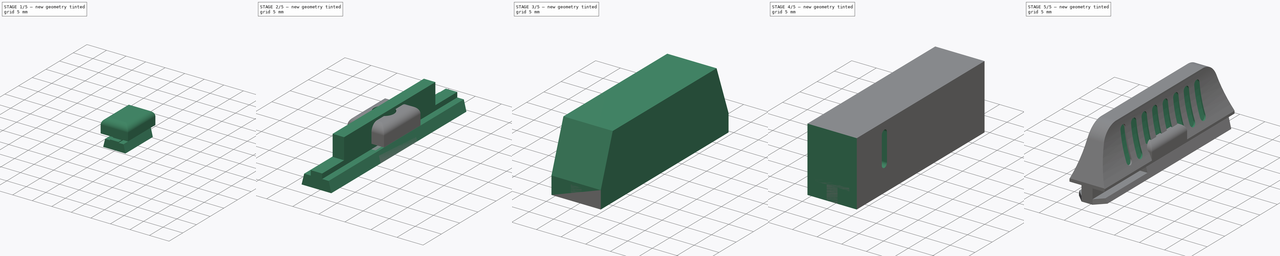
[diagram: build sequence overview — one tinted view per stage of 5, left to right]
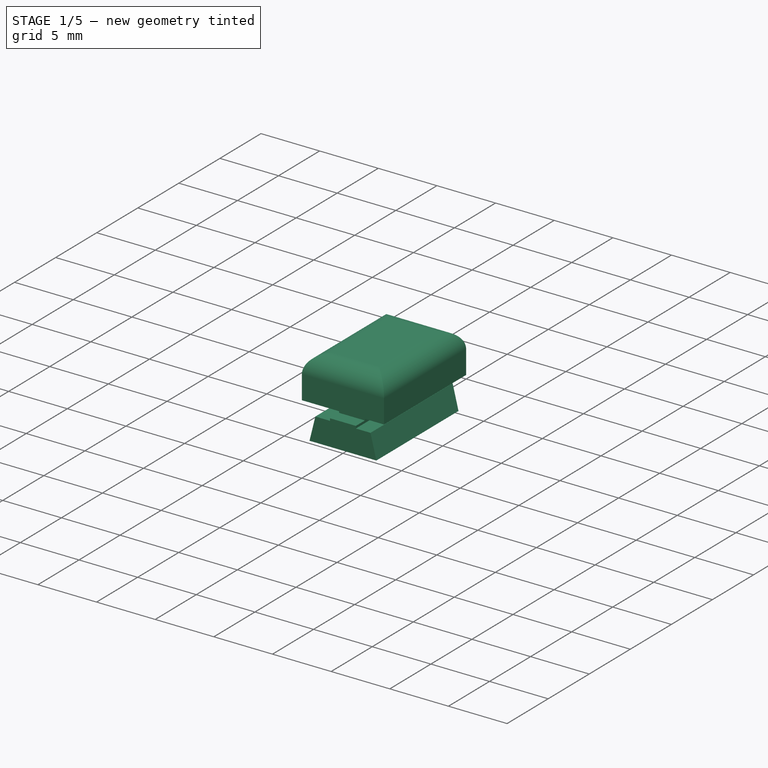
[diagram: stage 1 of 5 — iso view after this stage's code; geometry added in this stage tinted green]
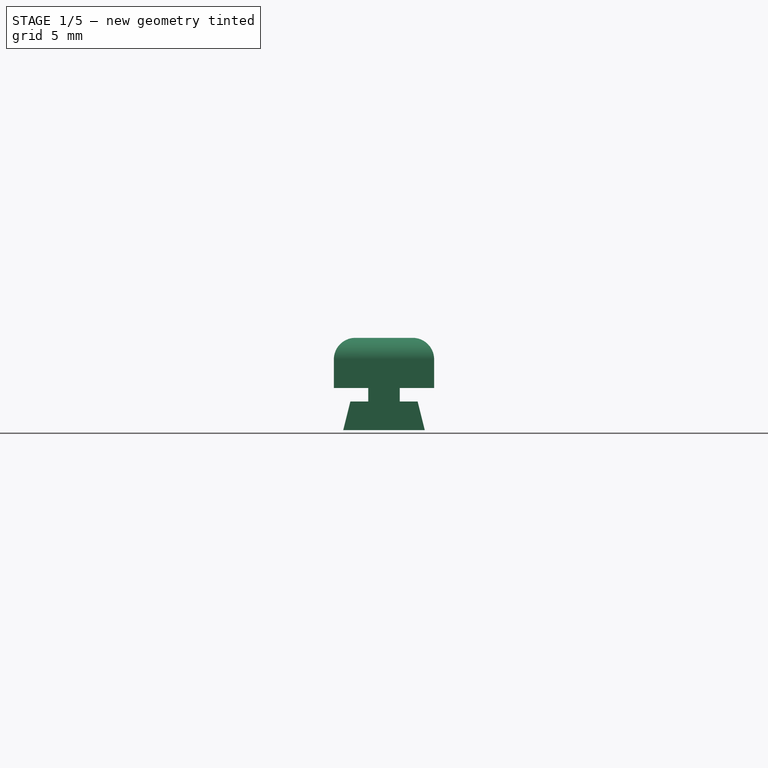
[diagram: stage 1 of 5 — front view after this stage's code; geometry added in this stage tinted green]
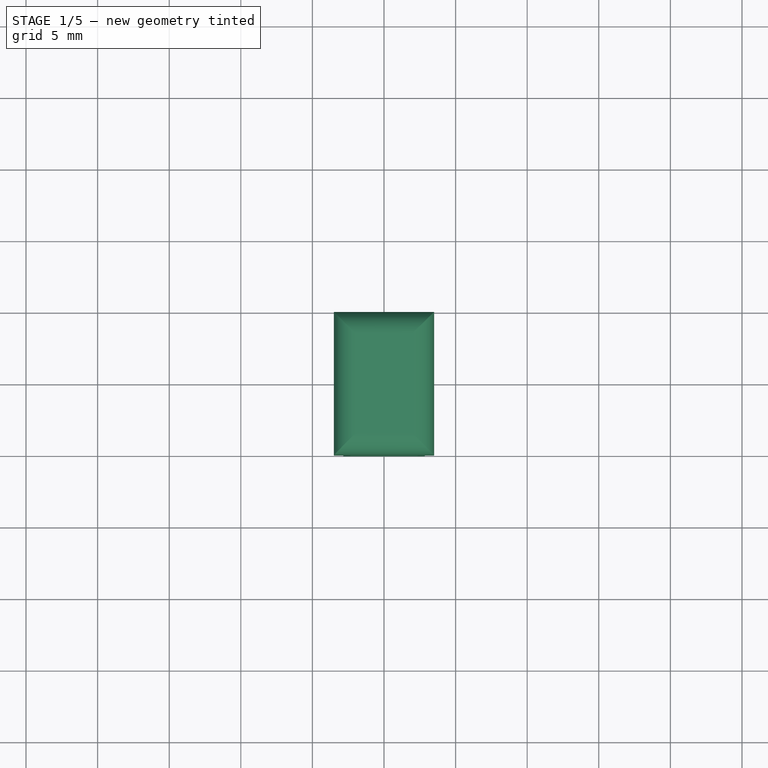
[diagram: stage 1 of 5 — top view after this stage's code; geometry added in this stage tinted green]
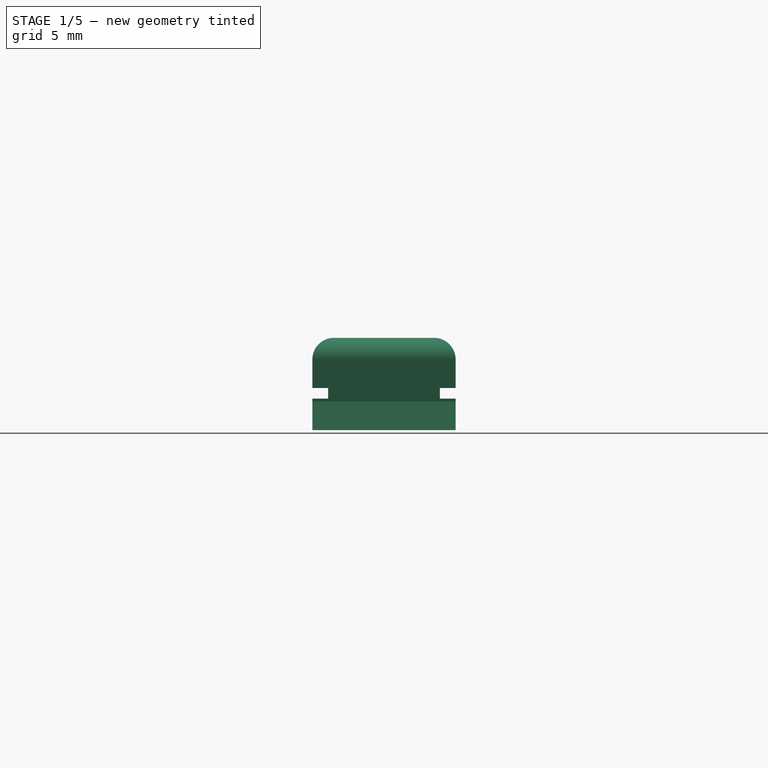
[diagram: stage 1 of 5 — right view after this stage's code; geometry added in this stage tinted green]
FCSTD DOCUMENT  (FreeCAD 0.16R6348 (Git))
Label: ShowerDoorLock
License: CreativeCommons Attribution-ShareAlike
LicenseURL: http://creativecommons.org/licenses/by-sa/4.0/
objects: Sketcher::SketchObject×16, PartDesign::Pocket×11, App::DocumentObjectGroup×6, PartDesign::Pad×5, Part::Box×2, Part::Cut×2, PartDesign::Fillet×2, Part::MultiCommon×1, PartDesign::LinearPattern×1
note: 56 computed .brp shape members not serialized (recipe doc carries the construction recipe); baked Part::Feature solids carry a one-line shape summary decoded from their .brp

FEATURE [Sketcher::SketchObject] Sketch004  label="01_EndstopBase_Sketch"
  Placement = pos=(0,0,0) rot=(1,0,0;1.5708rad)
  sketch-geometry (4):
    g0: LineSegment StartX=3.5 StartY=2.95 StartZ=0 EndX=-3.5 EndY=2.95 EndZ=0
    g1: LineSegment StartX=-3.5 StartY=2.95 StartZ=0 EndX=-3.5 EndY=6.45 EndZ=0
    g2: LineSegment StartX=3.5 StartY=2.95 StartZ=0 EndX=3.5 EndY=6.45 EndZ=0
    g3: LineSegment StartX=-3.5 StartY=6.45 StartZ=0 EndX=3.5 EndY=6.45 EndZ=0
  constraints (12):
    c: Horizontal(g0)
    c: Symmetric(g0,g2,g-2)
    c: Distance(g0,g2) = 7
    c: Coincident(g1,g0)
    c: Vertical(g2)
    c: Vertical(g1)
    c: Symmetric(g1,g2,g-2)
    c: DistanceY(g2) = 3.5
    c: Coincident(g3,g1)
    c: Coincident(g3,g2)
    c: Coincident(g0,g2)
    c: DistanceY(g-1,g0) = 2.95
FEATURE [PartDesign::Pad] Pad002  label="01_EndstopBase_Pad"
  Length = 10
  Length2 = 100
  Midplane = true
  Placement = pos=(0,0,0) rot=(1,0,0;1.5708rad)
  Sketch = -> Sketch004
  Type = 0
FEATURE [App::DocumentObjectGroup] Group003  label="Slide"
  Group = -> [Pad003,Pocket004,Pocket008,Pocket009]
FEATURE [App::DocumentObjectGroup] Group  label="Bolt"
  Group = -> [Group002,Group003]
FEATURE [Sketcher::SketchObject] Sketch014  label="01_EndstopBase_Sketch001"
  Placement = pos=(0,0,0) rot=(1,0,0;1.5708rad)
  sketch-geometry (8):
    g0: LineSegment StartX=-2.85 StartY=0 StartZ=0 EndX=-2.35 EndY=2 EndZ=0
    g1: LineSegment StartX=-2.35 StartY=2 StartZ=0 EndX=-1.1 EndY=2 EndZ=0
    g2: LineSegment StartX=-1.1 StartY=2 StartZ=0 EndX=-1.1 EndY=3.2 EndZ=0
    g3: LineSegment StartX=2.85 StartY=0 StartZ=0 EndX=2.35 EndY=2 EndZ=0
    g4: LineSegment StartX=2.35 StartY=2 StartZ=0 EndX=1.1 EndY=2 EndZ=0
    g5: LineSegment StartX=1.1 StartY=2 StartZ=0 EndX=1.1 EndY=3.2 EndZ=0
    g6: LineSegment StartX=-2.85 StartY=0 StartZ=0 EndX=2.85 EndY=0 EndZ=0
    g7: LineSegment StartX=-1.1 StartY=3.2 StartZ=0 EndX=1.1 EndY=3.2 EndZ=0
  constraints (23):
    c: PointOnObject(g0,g-1)
    c: Coincident(g0,g1)
    c: Horizontal(g1)
    c: Coincident(g1,g2)
    c: PointOnObject(g3,g-1)
    c: Coincident(g3,g4)
    c: Horizontal(g4)
    c: Coincident(g4,g5)
    c: Symmetric(g0,g3,g-2)
    c: Horizontal(g6)
    c: Coincident(g6,g3)
    c: Coincident(g0,g6)
    c: Symmetric(g0,g3,g-2)
    c: Symmetric(g1,g4,g-2)
    c: Symmetric(g2,g5,g-2)
    c: DistanceX(g6) = 5.7
    c: Distance(g3,g0) = 4.7
    c: DistanceY(g3,g3) = -2
    c: DistanceY(g4,g5) = 1.2
    c: Vertical(g2)
    c: Distance(g2,g5) = 2.2
    c: Coincident(g7,g2)
    c: Coincident(g7,g5)
FEATURE [PartDesign::Fillet] Fillet001  label="02_RoundedTop_Fillet"
  Base = -> Pad002 [Edge5,Edge9,Edge8,Edge10]
  Placement = pos=(0,0,0) rot=(1,0,0;1.5708rad)
  Radius = 1.5
FEATURE [App::DocumentObjectGroup] Group004  label="Head"
  Group = -> [Pad002,Fillet001,Pocket002,Pocket003,Pocket010]
FEATURE [PartDesign::Pad] Pad004  label="01_EndstopBase_Pad001"
  Length = 10
  Length2 = 100
  Midplane = true
  Placement = pos=(0,0,0) rot=(1,0,0;1.5708rad)
  Sketch = -> Sketch014
  Type = 0
FEATURE [Sketcher::SketchObject] Sketch016  label="02_FootCutOuts_Sketch"
  ExternalGeometry = -> [Pad004]
  Placement = pos=(-1.1,0,0) rot=(0.707107,0,-0.707107;3.14159rad)
  Support = -> Pad004 [Face4]
  sketch-geometry (8):
    g0: LineSegment StartX=-3.2 StartY=5 StartZ=0 EndX=-2.2 EndY=5 EndZ=0
    g1: LineSegment StartX=-2.2 StartY=5 StartZ=0 EndX=-2.2 EndY=3.9 EndZ=0
    g2: LineSegment StartX=-2.2 StartY=3.9 StartZ=0 EndX=-3.2 EndY=3.9 EndZ=0
    g3: LineSegment StartX=-3.2 StartY=3.9 StartZ=0 EndX=-3.2 EndY=5 EndZ=0
    g4: LineSegment StartX=-3.2 StartY=-3.9 StartZ=0 EndX=-2.2 EndY=-3.9 EndZ=0
    g5: LineSegment StartX=-2.2 StartY=-3.9 StartZ=0 EndX=-2.2 EndY=-5 EndZ=0
    g6: LineSegment StartX=-2.2 StartY=-5 StartZ=0 EndX=-3.2 EndY=-5 EndZ=0
    g7: LineSegment StartX=-3.2 StartY=-5 StartZ=0 EndX=-3.2 EndY=-3.9 EndZ=0
  constraints (21):
    c: Coincident(g0,g1)
    c: Coincident(g1,g2)
    c: Coincident(g2,g3)
    c: Coincident(g3,g0)
    c: Horizontal(g0)
    c: Horizontal(g2)
    c: Vertical(g1)
    c: Vertical(g3)
    c: Coincident(g0,g-3)
    c: DistanceX(g0,g0) = 1
    c: DistanceY(g3) = 1.1
    c: Coincident(g4,g5)
    c: Coincident(g5,g6)
    c: Coincident(g6,g7)
    c: Coincident(g7,g4)
    c: Horizontal(g4)
    c: Horizontal(g6)
    c: Vertical(g5)
    c: Vertical(g7)
    c: Symmetric(g6,g0,g-1)
    c: Symmetric(g1,g4,g-1)
FEATURE [PartDesign::Pocket] Pocket011  label="02_FootCutOuts_Pocket"
  Length = 5
  Placement = pos=(0,0,0) rot=(1,0,0;1.5708rad)
  Sketch = -> Sketch016
  Type = 1
FEATURE [Sketcher::SketchObject] Sketch017  label="03_ScrewHoles_Sketch"
  Placement = pos=(0,0,3.2) rot=(0,0,1;3.14159rad)
  Support = -> Pocket011 [Face13]
  sketch-geometry (1):
    g0: Circle CenterX=0 CenterY=0 CenterZ=0 NormalX=0 NormalY=0 NormalZ=1 Radius=0.6
  constraints (2):
    c: Coincident(g0,g-1)
    c: Radius(g0) = 0.6
FEATURE [PartDesign::Pocket] Pocket012  label="03_ScrewHoles_Pocket"
  Length = 5
  Placement = pos=(0,0,0) rot=(1,0,0;1.5708rad)
  Sketch = -> Sketch017
  Type = 1
FEATURE [App::DocumentObjectGroup] Group005  label="Foot"
  Group = -> [Pad004,Pocket011,Pocket012]
FEATURE [App::DocumentObjectGroup] Group001  label="Endstop"
  Group = -> [Group004,Group005]
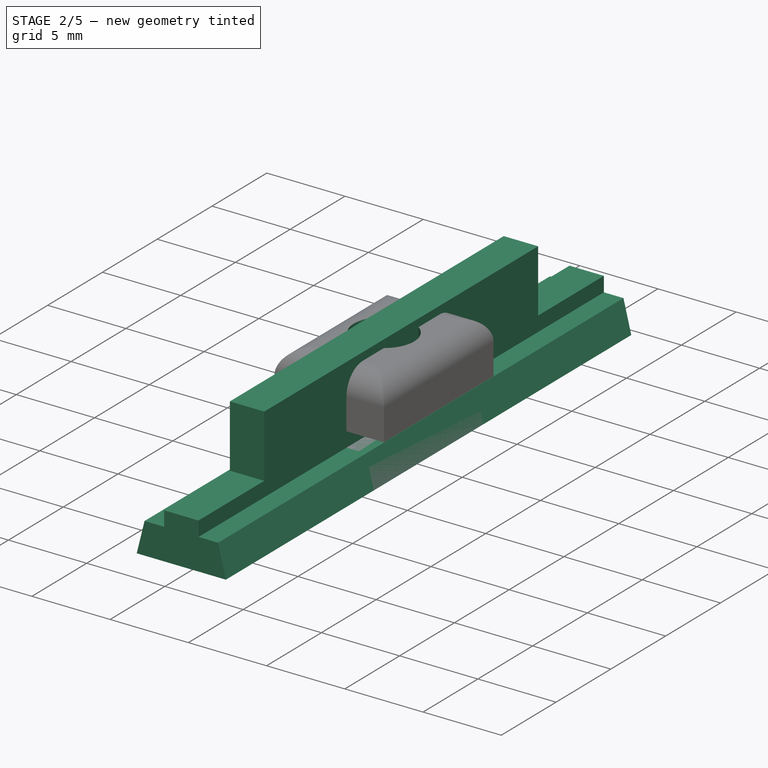
[diagram: stage 2 of 5 — iso view after this stage's code; geometry added in this stage tinted green]
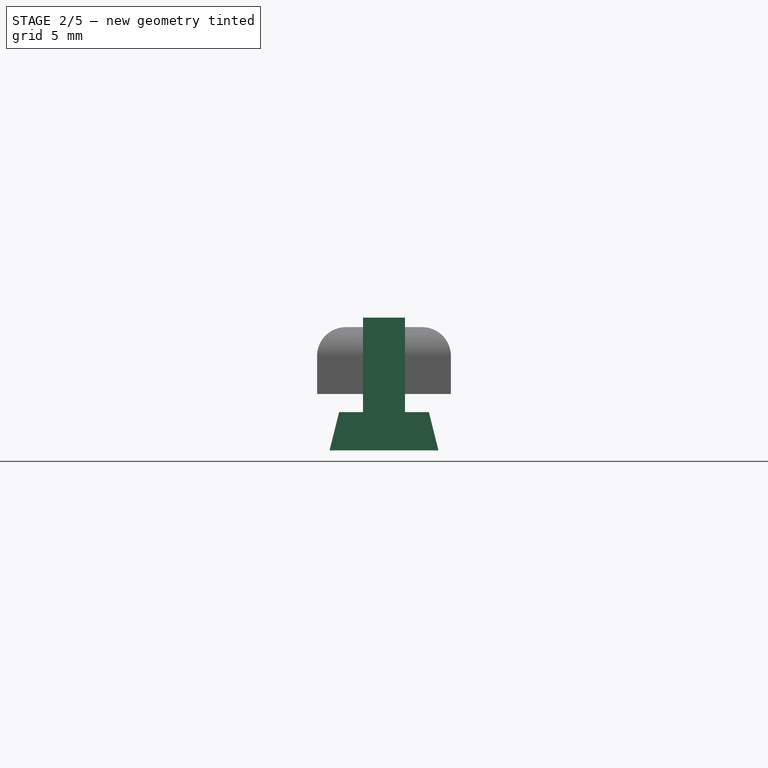
[diagram: stage 2 of 5 — front view after this stage's code; geometry added in this stage tinted green]
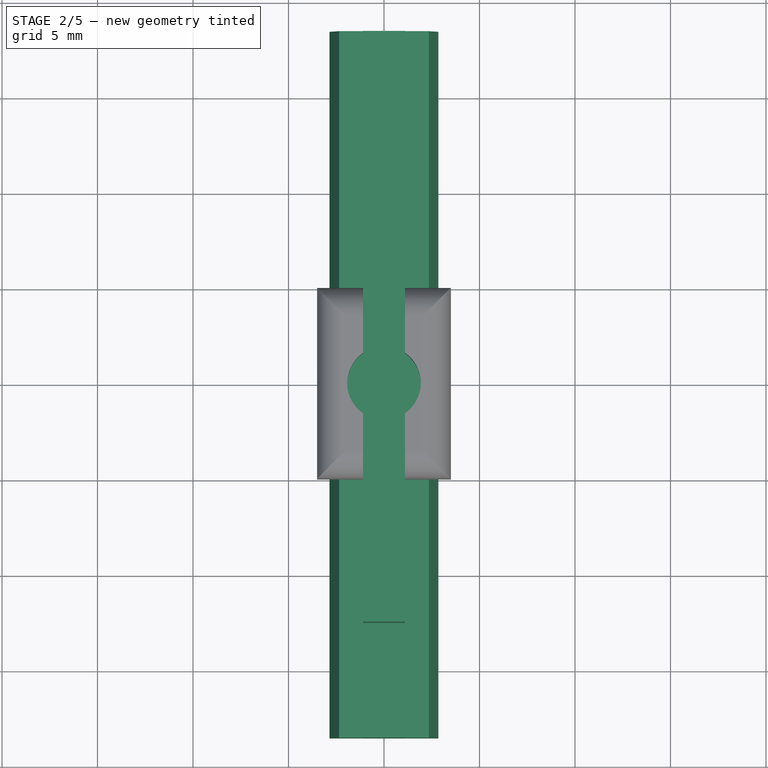
[diagram: stage 2 of 5 — top view after this stage's code; geometry added in this stage tinted green]
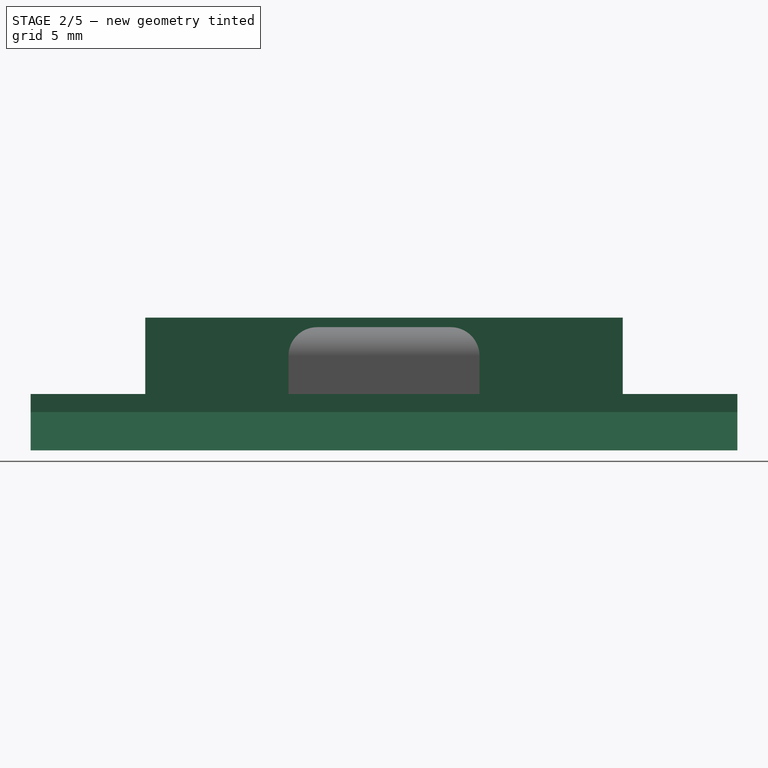
[diagram: stage 2 of 5 — right view after this stage's code; geometry added in this stage tinted green]
FEATURE [Sketcher::SketchObject] Sketch007  label="01_BoltSlide_Sketch"
  Placement = pos=(0,0,0) rot=(1,0,0;1.5708rad)
  sketch-geometry (8):
    g0: LineSegment StartX=-2.85 StartY=0 StartZ=0 EndX=-2.35 EndY=2 EndZ=0
    g1: LineSegment StartX=-2.35 StartY=2 StartZ=0 EndX=-1.1 EndY=2 EndZ=0
    g2: LineSegment StartX=-1.1 StartY=2 StartZ=0 EndX=-1.1 EndY=6.95 EndZ=0
    g3: LineSegment StartX=2.85 StartY=0 StartZ=0 EndX=2.35 EndY=2 EndZ=0
    g4: LineSegment StartX=2.35 StartY=2 StartZ=0 EndX=1.1 EndY=2 EndZ=0
    g5: LineSegment StartX=1.1 StartY=2 StartZ=0 EndX=1.1 EndY=6.95 EndZ=0
    g6: LineSegment StartX=-2.85 StartY=0 StartZ=0 EndX=2.85 EndY=0 EndZ=0
    g7: LineSegment StartX=-1.1 StartY=6.95 StartZ=0 EndX=1.1 EndY=6.95 EndZ=0
  constraints (23):
    c: PointOnObject(g0,g-1)
    c: Coincident(g0,g1)
    c: Horizontal(g1)
    c: Coincident(g1,g2)
    c: PointOnObject(g3,g-1)
    c: Coincident(g3,g4)
    c: Horizontal(g4)
    c: Coincident(g4,g5)
    c: Symmetric(g0,g3,g-2)
    c: Horizontal(g6)
    c: Coincident(g6,g3)
    c: Coincident(g0,g6)
    c: Symmetric(g0,g3,g-2)
    c: Symmetric(g1,g4,g-2)
    c: Symmetric(g2,g5,g-2)
    c: DistanceX(g6) = 5.7
    c: Distance(g3,g0) = 4.7
    c: DistanceY(g3,g3) = -2
    c: DistanceY(g4,g5) = 4.95
    c: Vertical(g2)
    c: Distance(g2,g5) = 2.2
    c: Coincident(g7,g2)
    c: Coincident(g7,g5)
FEATURE [PartDesign::Pad] Pad003  label="01_BoltSlide_Pad"
  Length = 37
  Length2 = 100
  Midplane = true
  Placement = pos=(0,0,0) rot=(1,0,0;1.5708rad)
  Sketch = -> Sketch007
  Type = 0
FEATURE [Sketcher::SketchObject] Sketch008  label="02_CutOuts_Sketch"
  ExternalGeometry = -> [Pad003]
  Placement = pos=(1.1,0,0) rot=(0.707107,0,0.707107;3.14159rad)
  Support = -> Pad003 [Face6]
  sketch-geometry (8):
    g0: LineSegment StartX=6.95 StartY=18.5 StartZ=0 EndX=2.95 EndY=18.5 EndZ=0
    g1: LineSegment StartX=2.95 StartY=18.5 StartZ=0 EndX=2.95 EndY=12.5 EndZ=0
    g2: LineSegment StartX=2.95 StartY=12.5 StartZ=0 EndX=6.95 EndY=12.5 EndZ=0
    g3: LineSegment StartX=6.95 StartY=12.5 StartZ=0 EndX=6.95 EndY=18.5 EndZ=0
    g4: LineSegment StartX=6.95 StartY=-12.5 StartZ=0 EndX=2.95 EndY=-12.5 EndZ=0
    g5: LineSegment StartX=2.95 StartY=-12.5 StartZ=0 EndX=2.95 EndY=-18.5 EndZ=0
    g6: LineSegment StartX=2.95 StartY=-18.5 StartZ=0 EndX=6.95 EndY=-18.5 EndZ=0
    g7: LineSegment StartX=6.95 StartY=-18.5 StartZ=0 EndX=6.95 EndY=-12.5 EndZ=0
  constraints (21):
    c: Coincident(g0,g1)
    c: Coincident(g1,g2)
    c: Coincident(g2,g3)
    c: Coincident(g3,g0)
    c: Horizontal(g0)
    c: Horizontal(g2)
    c: Vertical(g1)
    c: Vertical(g3)
    c: Coincident(g0,g-3)
    c: DistanceX(g0) = -4
    c: DistanceY(g1) = -6
    c: Coincident(g4,g5)
    c: Coincident(g5,g6)
    c: Coincident(g6,g7)
    c: Coincident(g7,g4)
    c: Horizontal(g4)
    c: Horizontal(g6)
    c: Vertical(g5)
    c: Vertical(g7)
    c: Coincident(g6,g-3)
    c: Symmetric(g1,g4,g-1)
FEATURE [PartDesign::Pocket] Pocket004  label="02_CutOuts_Pocket"
  Length = 5
  Placement = pos=(0,0,0) rot=(1,0,0;1.5708rad)
  Sketch = -> Sketch008
  Type = 1
FEATURE [Sketcher::SketchObject] Sketch005  label="03_ScrewThroughHole_Sketch"
  Placement = pos=(0,0,6.45) rot=(0,0,1;3.14159rad)
  Support = -> Fillet001 [Face8]
  sketch-geometry (1):
    g0: Circle CenterX=0 CenterY=0 CenterZ=0 NormalX=0 NormalY=0 NormalZ=1 Radius=0.8
  constraints (2):
    c: Coincident(g0,g-1)
    c: Radius(g0) = 0.8
FEATURE [PartDesign::Pocket] Pocket002  label="03_ScrewThroughHole_Pocket"
  Length = 5
  Placement = pos=(0,0,0) rot=(1,0,0;1.5708rad)
  Sketch = -> Sketch005
  Type = 1
FEATURE [Sketcher::SketchObject] Sketch006  label="04_ScrewCounterboreHole_Sketch"
  ExternalGeometry = -> [Pocket002]
  Placement = pos=(0,0,6.45) rot=(0,0,1;3.14159rad)
  Support = -> Pocket002 [Face8]
  sketch-geometry (1):
    g0: Circle CenterX=0 CenterY=0 CenterZ=0 NormalX=0 NormalY=0 NormalZ=1 Radius=1.925
  constraints (2):
    c: Radius(g0) = 1.925
    c: Coincident(g0,g-1)
FEATURE [PartDesign::Pocket] Pocket003  label="04_ScrewCounterboreHole_Pocket"
  Length = 1.85
  Placement = pos=(0,0,0) rot=(1,0,0;1.5708rad)
  Sketch = -> Sketch006
  Type = 0
FEATURE [Sketcher::SketchObject] Sketch015  label="05_SlideGroove_Sketch"
  Placement = pos=(0,0,2.95) rot=(1,0,0;3.14159rad)
  Support = -> Pocket003 [Face4]
  sketch-geometry (4):
    g0: LineSegment StartX=-1.25 StartY=4 StartZ=0 EndX=1.25 EndY=4 EndZ=0
    g1: LineSegment StartX=1.25 StartY=4 StartZ=0 EndX=1.25 EndY=-4 EndZ=0
    g2: LineSegment StartX=1.25 StartY=-4 StartZ=0 EndX=-1.25 EndY=-4 EndZ=0
    g3: LineSegment StartX=-1.25 StartY=-4 StartZ=0 EndX=-1.25 EndY=4 EndZ=0
  constraints (12):
    c: Coincident(g0,g1)
    c: Coincident(g1,g2)
    c: Coincident(g2,g3)
    c: Coincident(g3,g0)
    c: Horizontal(g0)
    c: Horizontal(g2)
    c: Vertical(g1)
    c: Vertical(g3)
    c: Symmetric(g2,g0,g-1)
    c: Symmetric(g0,g0,g-2)
    c: DistanceX(g0) = 2.5
    c: DistanceY(g3) = 8
FEATURE [PartDesign::Pocket] Pocket010  label="05_SlideGroove_Pocket"
  Length = 1
  Placement = pos=(0,0,0) rot=(1,0,0;1.5708rad)
  Sketch = -> Sketch015
  Type = 0
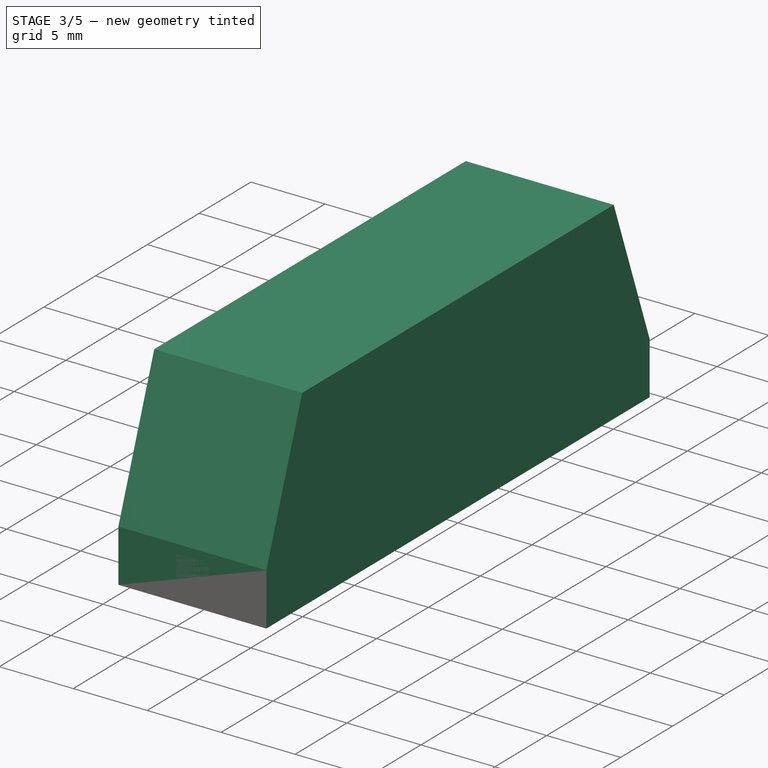
[diagram: stage 3 of 5 — iso view after this stage's code; geometry added in this stage tinted green]
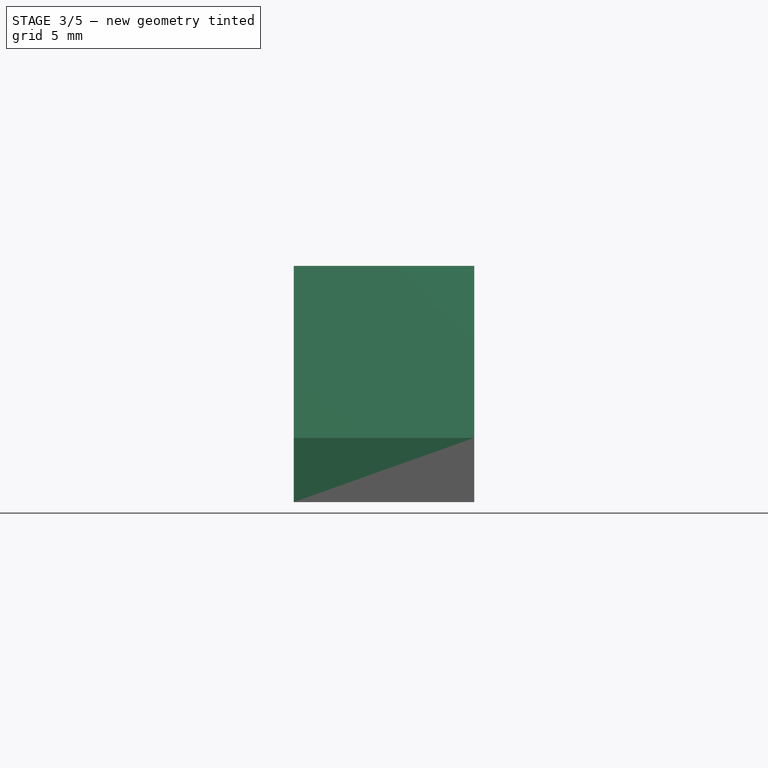
[diagram: stage 3 of 5 — front view after this stage's code; geometry added in this stage tinted green]
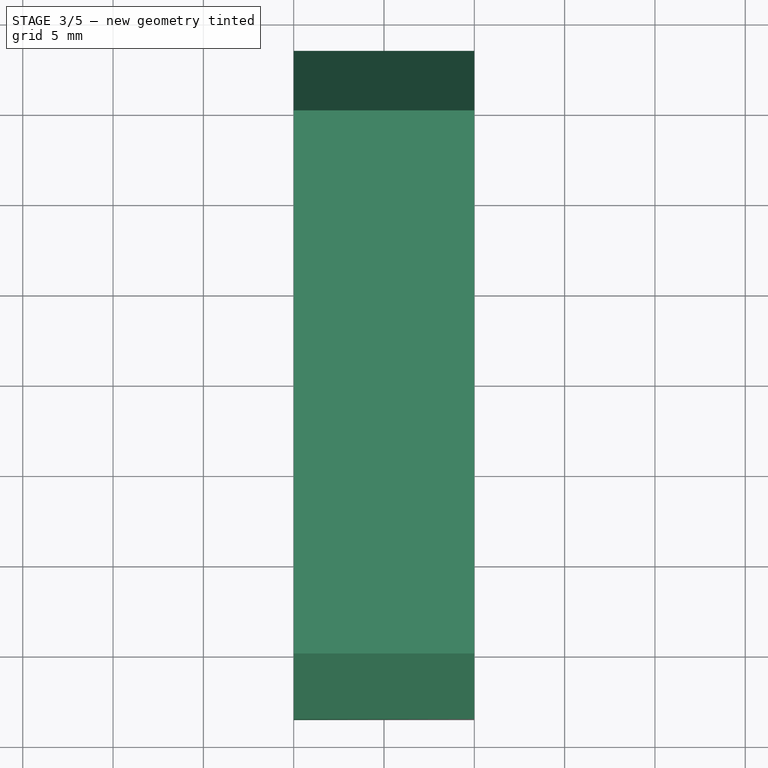
[diagram: stage 3 of 5 — top view after this stage's code; geometry added in this stage tinted green]
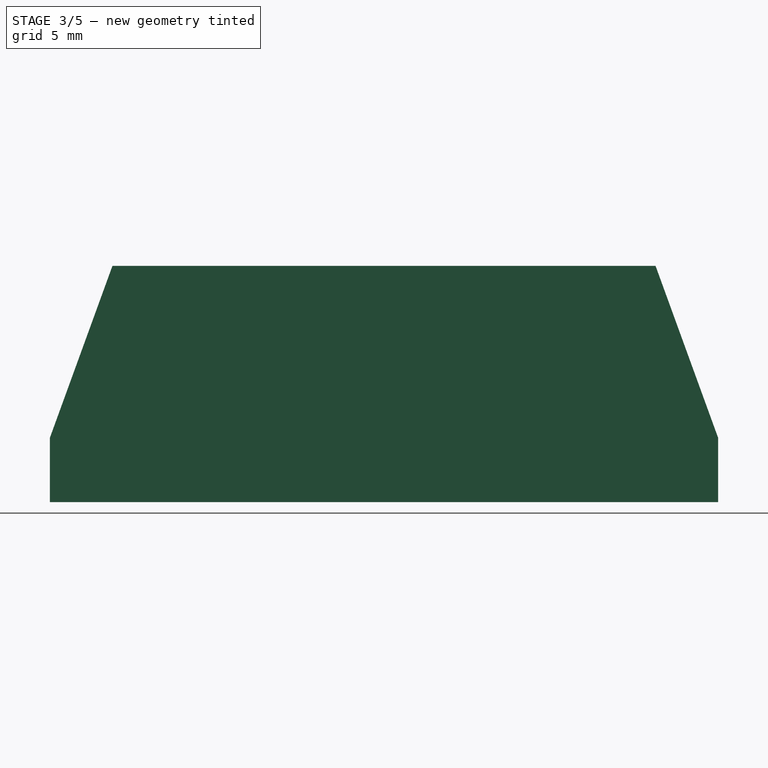
[diagram: stage 3 of 5 — right view after this stage's code; geometry added in this stage tinted green]
FEATURE [Part::Box] Box  label="02_Chamfer_Cube"
  Height = 13.075
  Length = 10
  Placement = pos=(-5,-18.5,0) rot=(0,0,1;0rad)
  Width = 37
FEATURE [Sketcher::SketchObject] Sketch001  label="02_Chamfer_Sketch"
  ExternalGeometry = -> [Box]
  Placement = pos=(5,-18.5,0) rot=(0.57735,0.57735,0.57735;2.0944rad)
  Support = -> Box [Face2]
  sketch-geometry (9):
    g0: LineSegment StartX=0 StartY=3.557 StartZ=0 EndX=3.46427 EndY=13.075 EndZ=0
    g1: LineSegment StartX=3.46427 StartY=13.075 StartZ=0 EndX=33.5357 EndY=13.075 EndZ=0
    g2: LineSegment StartX=33.5357 StartY=13.075 StartZ=0 EndX=37 EndY=3.557 EndZ=0
    g3: LineSegment StartX=37 StartY=3.557 StartZ=0 EndX=38 EndY=3.557 EndZ=0
    g4: LineSegment StartX=38 StartY=3.557 StartZ=0 EndX=38 EndY=14.075 EndZ=0
    g5: LineSegment StartX=38 StartY=14.075 StartZ=0 EndX=-1 EndY=14.075 EndZ=0
    g6: LineSegment StartX=-1 StartY=14.075 StartZ=0 EndX=-1 EndY=3.557 EndZ=0
    g7: LineSegment StartX=-1 StartY=3.557 StartZ=0 EndX=0 EndY=3.557 EndZ=0
    g8: LineSegment [constr] StartX=18.5 StartY=13.075 StartZ=0 EndX=18.5 EndY=-1.925 EndZ=0
  constraints (27):
    c: PointOnObject(g0,g-2)
    c: Coincident(g0,g1)
    c: Horizontal(g1)
    c: Coincident(g1,g2)
    c: Coincident(g2,g3)
    c: Coincident(g3,g4)
    c: Coincident(g4,g5)
    c: Horizontal(g5)
    c: Coincident(g5,g6)
    c: Vertical(g6)
    c: Coincident(g6,g7)
    c: Coincident(g7,g0)
    c: Horizontal(g7)
    c: DistanceY(g-1,g0) = 3.557
    c: Angle(g-2,g0) = 2.79253
    c: DistanceX(g-1,g5) = -1
    c: DistanceY(g5,g-3) = -1
    c: PointOnObject(g0,g-3)
    c: PointOnObject(g8,g-3)
    c: Vertical(g8)
    c: DistanceY(g8) = -15
    c: Symmetric(g-3,g-3,g8)
    c: Symmetric(g0,g1,g8)
    c: Symmetric(g0,g2,g8)
    c: Vertical(g4)
    c: Horizontal(g3)
    c: Symmetric(g6,g3,g8)
FEATURE [PartDesign::Pocket] Pocket  label="02_Chamfer_Pocket"
  Length = 5
  Placement = pos=(-5,-18.5,0) rot=(0,0,1;0rad)
  Sketch = -> Sketch001
  Type = 1
FEATURE [App::DocumentObjectGroup] Group002  label="Knob"
  Group = -> [Box,Common,Box001,Pocket001,Cut001,Pocket007]
FEATURE [Sketcher::SketchObject] Sketch012  label="03_ArrowHead_Sketch"
  ExternalGeometry = -> [Pocket004]
  Placement = pos=(0,0,0) rot=(1,0,0;3.14159rad)
  Support = -> Pocket004 [Face1]
  sketch-geometry (6):
    g0: LineSegment StartX=-1.1 StartY=18.5 StartZ=0 EndX=-3.85 EndY=15.75 EndZ=0
    g1: LineSegment StartX=-3.85 StartY=15.75 StartZ=0 EndX=-3.85 EndY=19.5 EndZ=0
    g2: LineSegment StartX=-3.85 StartY=19.5 StartZ=0 EndX=3.85 EndY=19.5 EndZ=0
    g3: LineSegment StartX=3.85 StartY=19.5 StartZ=0 EndX=3.85 EndY=15.75 EndZ=0
    g4: LineSegment StartX=3.85 StartY=15.75 StartZ=0 EndX=1.1 EndY=18.5 EndZ=0
    g5: LineSegment StartX=1.1 StartY=18.5 StartZ=0 EndX=-1.1 EndY=18.5 EndZ=0
  constraints (18):
    c: PointOnObject(g0,g-3)
    c: Coincident(g0,g1)
    c: Vertical(g1)
    c: Coincident(g1,g2)
    c: Horizontal(g2)
    c: Coincident(g2,g3)
    c: Vertical(g3)
    c: Coincident(g3,g4)
    c: PointOnObject(g4,g-3)
    c: Coincident(g4,g5)
    c: Coincident(g5,g0)
    c: Symmetric(g0,g4,g-2)
    c: Symmetric(g1,g2,g-2)
    c: Symmetric(g0,g3,g-2)
    c: DistanceY(g-3,g1) = 1
    c: DistanceX(g-3,g2) = 1
    c: Angle(g0,g4) = 1.5708
    c: DistanceX(g0,g4) = 2.2
FEATURE [PartDesign::Pocket] Pocket008  label="03_ArrowHead_Pocket"
  Length = 5
  Placement = pos=(0,0,0) rot=(1,0,0;1.5708rad)
  Sketch = -> Sketch012
  Type = 1
FEATURE [Sketcher::SketchObject] Sketch013  label="04_ReducedThickness_Sketch"
  ExternalGeometry = -> [Pocket008]
  Placement = pos=(0,0,2) rot=(0,0,1;3.14159rad)
  Support = -> Pocket008 [Face12]
  sketch-geometry (8):
    g0: LineSegment StartX=-1.1 StartY=0 StartZ=0 EndX=-1.1 EndY=19.5 EndZ=0
    g1: LineSegment StartX=-1.1 StartY=19.5 StartZ=0 EndX=1.1 EndY=19.5 EndZ=0
    g2: LineSegment StartX=1.1 StartY=19.5 StartZ=0 EndX=1.1 EndY=0 EndZ=0
    g3: LineSegment StartX=1.1 StartY=0 StartZ=0 EndX=3.35 EndY=0 EndZ=0
    g4: LineSegment StartX=3.35 StartY=0 StartZ=0 EndX=3.35 EndY=20.5 EndZ=0
    g5: LineSegment StartX=3.35 StartY=20.5 StartZ=0 EndX=-3.35 EndY=20.5 EndZ=0
    g6: LineSegment StartX=-3.35 StartY=20.5 StartZ=0 EndX=-3.35 EndY=0 EndZ=0
    g7: LineSegment StartX=-3.35 StartY=0 StartZ=0 EndX=-1.1 EndY=0 EndZ=0
  constraints (23):
    c: PointOnObject(g0,g-1)
    c: Vertical(g0)
    c: Coincident(g0,g1)
    c: Horizontal(g1)
    c: Coincident(g1,g2)
    c: Vertical(g2)
    c: Coincident(g2,g3)
    c: Coincident(g3,g4)
    c: Vertical(g4)
    c: Coincident(g4,g5)
    c: Horizontal(g5)
    c: Coincident(g5,g6)
    c: Vertical(g6)
    c: Coincident(g6,g7)
    c: Coincident(g7,g0)
    c: Horizontal(g7)
    c: Horizontal(g3)
    c: Symmetric(g0,g2,g-2)
    c: Symmetric(g6,g3,g-2)
    c: DistanceY(g-3,g0) = 1
    c: DistanceY(g0,g5) = 1
    c: PointOnObject(g0,g-3)
    c: DistanceX(g-4,g6) = -1
FEATURE [PartDesign::Pocket] Pocket009  label="04_ReducedThickness_Pocket"
  Length = 1
  Placement = pos=(0,0,0) rot=(1,0,0;1.5708rad)
  Sketch = -> Sketch013
  Type = 0
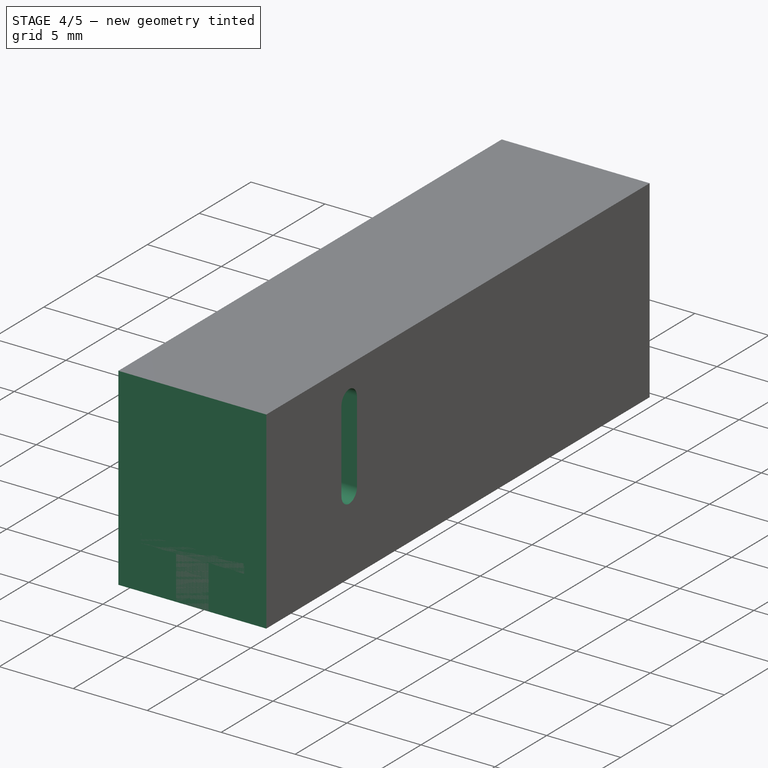
[diagram: stage 4 of 5 — iso view after this stage's code; geometry added in this stage tinted green]
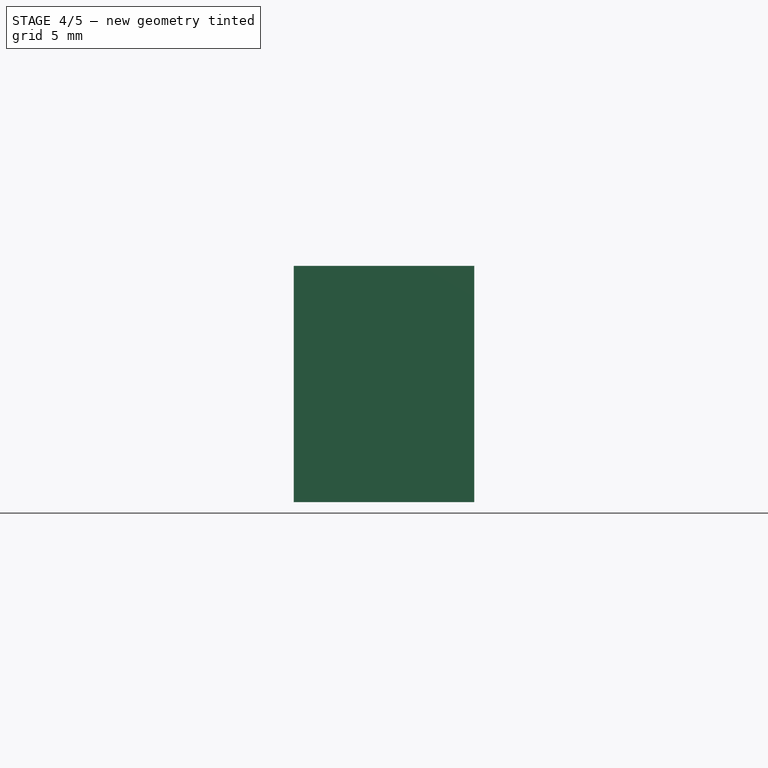
[diagram: stage 4 of 5 — front view after this stage's code; geometry added in this stage tinted green]
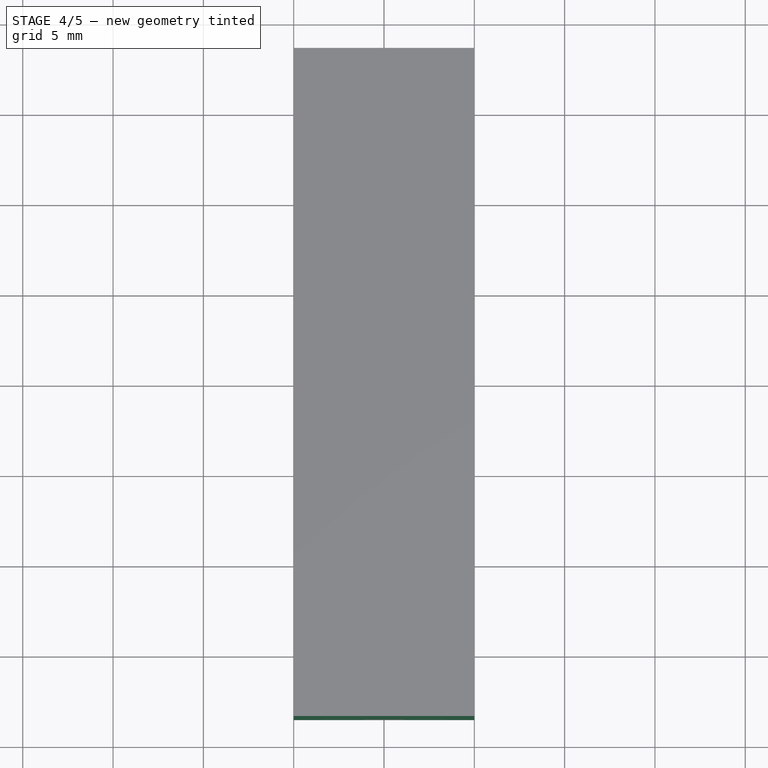
[diagram: stage 4 of 5 — top view after this stage's code; geometry added in this stage tinted green]
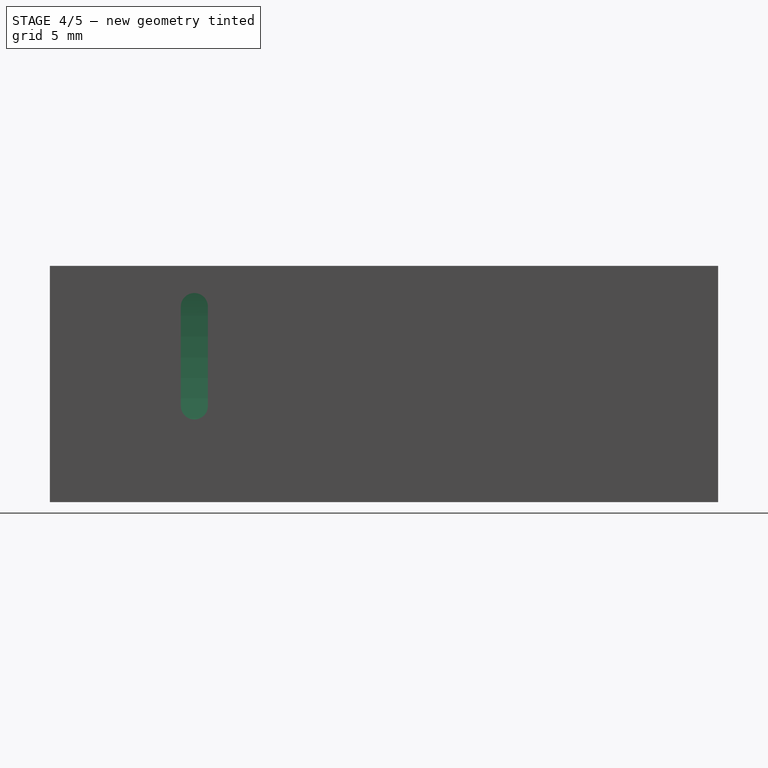
[diagram: stage 4 of 5 — right view after this stage's code; geometry added in this stage tinted green]
FEATURE [Sketcher::SketchObject] Sketch  label="01_BoltBase_Sketch"
  Placement = pos=(0,0,0) rot=(1,0,0;1.5708rad)
  sketch-geometry (7):
    g0: LineSegment StartX=3.5 StartY=2.95 StartZ=0 EndX=-3.5 EndY=2.95 EndZ=0
    g1: LineSegment StartX=-3.5 StartY=2.95 StartZ=0 EndX=-3.5 EndY=3.45 EndZ=0
    g2: LineSegment StartX=3.5 StartY=2.95 StartZ=0 EndX=3.5 EndY=3.45 EndZ=0
    g3: LineSegment StartX=-1.5 StartY=12.95 StartZ=0 EndX=1.5 EndY=12.95 EndZ=0
    g4: ArcOfCircle CenterX=-25.0625 CenterY=12.95 CenterZ=0 NormalX=0 NormalY=0 NormalZ=1 Radius=23.5625 StartAngle=5.86819 EndAngle=6.28319
    g5: ArcOfCircle CenterX=25.0625 CenterY=12.95 CenterZ=0 NormalX=0 NormalY=0 NormalZ=1 Radius=23.5625 StartAngle=3.14159 EndAngle=3.55659
    g6: LineSegment [constr] StartX=-1.5 StartY=12.95 StartZ=0 EndX=-1.5 EndY=7.95 EndZ=0
  constraints (23):
    c: Horizontal(g0)
    c: Symmetric(g0,g2,g-2)
    c: Distance(g0,g2) = 7
    c: Coincident(g1,g0)
    c: Vertical(g2)
    c: Vertical(g1)
    c: Symmetric(g1,g2,g-2)
    c: DistanceY(g2) = 0.5
    c: Horizontal(g3)
    c: DistanceY(g3,g2) = -10
    c: DistanceX(g3) = 3
    c: Symmetric(g3,g3,g-2)
    c: Coincident(g4,g1)
    c: Coincident(g4,g3)
    c: Coincident(g5,g3)
    c: Coincident(g5,g2)
    c: Coincident(g6,g3)
    c: Vertical(g6)
    c: DistanceY(g6) = -5
    c: Tangent(g4,g6)
    c: Equal(g4,g5)
    c: Coincident(g0,g2)
    c: DistanceY(g-1,g0) = 2.95
FEATURE [PartDesign::Pad] Pad  label="01_BoltBase_Pad"
  Length = 37
  Length2 = 100
  Midplane = true
  Placement = pos=(0,0,0) rot=(1,0,0;1.5708rad)
  Sketch = -> Sketch
  Type = 0
FEATURE [Part::MultiCommon] Common  label="03_Chamfer_Common"
  Shapes = -> [Pad,Pocket]
FEATURE [Part::Box] Box001  label="06_Grooves_Cube"
  Height = 13.075
  Length = 10
  Placement = pos=(-5,-18.5,0) rot=(0,0,1;0rad)
  Width = 37
FEATURE [Sketcher::SketchObject] Sketch003  label="06_Grooves_Sketch"
  ExternalGeometry = -> [Box001]
  Placement = pos=(5,-18.5,0) rot=(0.57735,0.57735,0.57735;2.0944rad)
  Support = -> Box001 [Face2]
  sketch-geometry (6):
    g0: ArcOfCircle CenterX=8 CenterY=10.825 CenterZ=0 NormalX=0 NormalY=0 NormalZ=1 Radius=0.75 StartAngle=0 EndAngle=3.14159
    g1: ArcOfCircle CenterX=8 CenterY=5.325 CenterZ=0 NormalX=0 NormalY=0 NormalZ=1 Radius=0.75 StartAngle=3.14159 EndAngle=6.28319
    g2: LineSegment StartX=7.25 StartY=10.825 StartZ=0 EndX=7.25 EndY=5.325 EndZ=0
    g3: LineSegment StartX=8.75 StartY=10.825 StartZ=0 EndX=8.75 EndY=5.325 EndZ=0
    g4: LineSegment [constr] StartX=0 StartY=11.575 StartZ=0 EndX=8 EndY=11.575 EndZ=0
    g5: LineSegment [constr] StartX=0 StartY=4.575 StartZ=0 EndX=8 EndY=4.575 EndZ=0
  constraints (18):
    c: Tangent(g0,g3) = 1.5708
    c: Tangent(g0,g2) = -1.5708
    c: Tangent(g2,g1) = -1.5708
    c: Tangent(g3,g1) = 1.5708
    c: Vertical(g2)
    c: Equal(g0,g1)
    c: Radius(g0) = 0.75
    c: PointOnObject(g4,g-2)
    c: PointOnObject(g4,g0)
    c: Horizontal(g4)
    c: Tangent(g4,g0)
    c: DistanceY(g4,g-3) = 1.5
    c: PointOnObject(g5,g-2)
    c: PointOnObject(g5,g1)
    c: Horizontal(g5)
    c: Tangent(g5,g1)
    c: DistanceY(g-1,g5) = 4.575
    c: DistanceX(g-1,g1) = 7.25
FEATURE [PartDesign::Pocket] Pocket001  label="06_Grooves_Pocket"
  Length = 5
  Placement = pos=(-5,-18.5,0) rot=(0,0,1;0rad)
  Sketch = -> Sketch003
  Type = 1
FEATURE [PartDesign::Fillet] Fillet  label="04_Rounded Corners_Fillet"
  Base = -> Common [Edge24,Edge23]
  Radius = 4
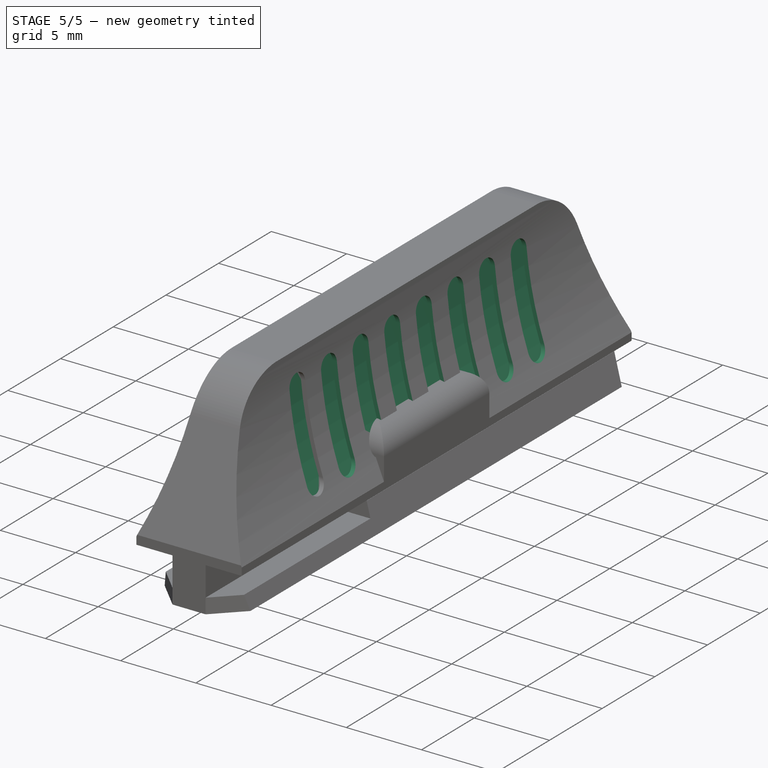
[diagram: stage 5 of 5 — iso view after this stage's code; geometry added in this stage tinted green]
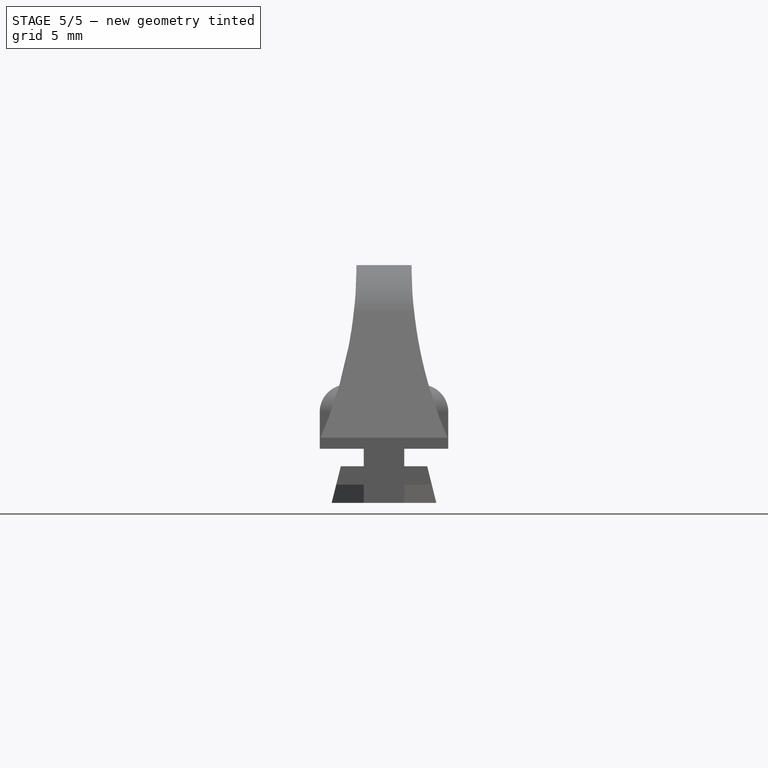
[diagram: stage 5 of 5 — front view after this stage's code; geometry added in this stage tinted green]
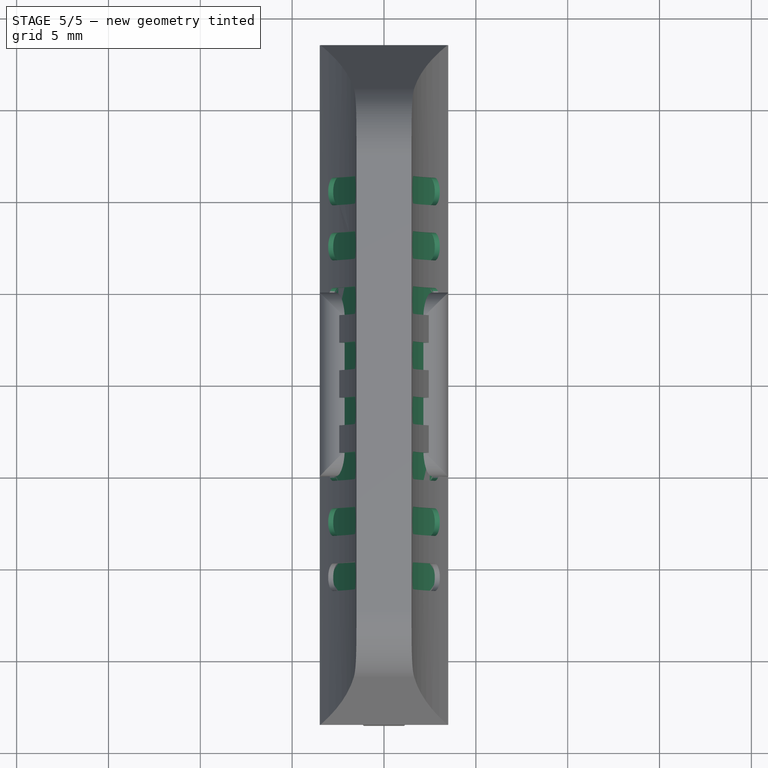
[diagram: stage 5 of 5 — top view after this stage's code; geometry added in this stage tinted green]
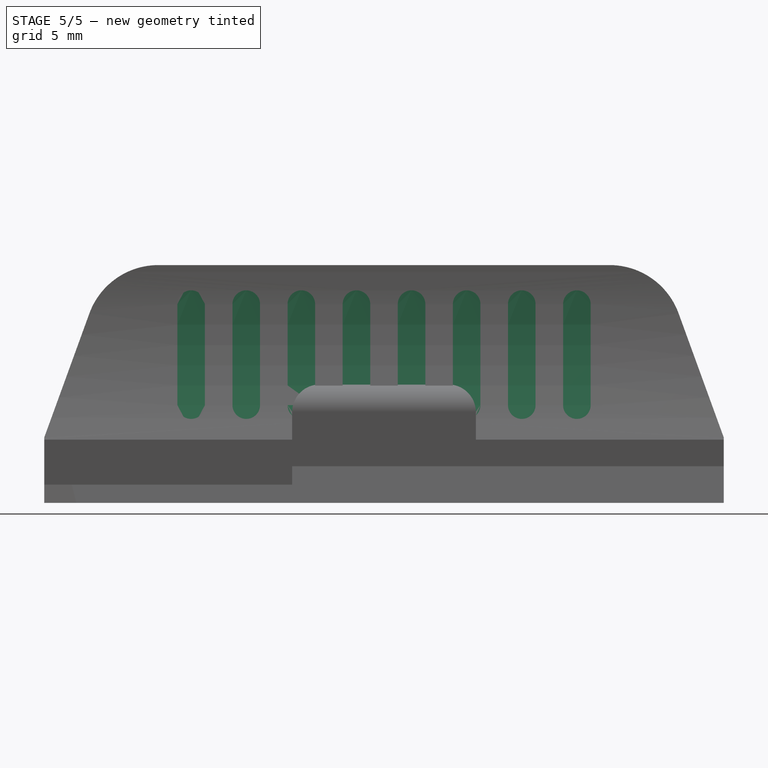
[diagram: stage 5 of 5 — right view after this stage's code; geometry added in this stage tinted green]
FEATURE [Sketcher::SketchObject] Sketch002  label="05_GroovesBase_Sketch001"
  Placement = pos=(0,0,0) rot=(1,0,0;1.5708rad)
  sketch-geometry (24):
    g0: LineSegment [constr] StartX=-3 StartY=0 StartZ=0 EndX=-2.5 EndY=2.125 EndZ=0
    g1: LineSegment [constr] StartX=-2.5 StartY=2.125 StartZ=0 EndX=-1.25 EndY=2.125 EndZ=0
    g2: LineSegment [constr] StartX=-1.25 StartY=2.125 StartZ=0 EndX=-1.25 EndY=3.075 EndZ=0
    g3: LineSegment [constr] StartX=-1.25 StartY=3.075 StartZ=0 EndX=-3.5 EndY=3.075 EndZ=0
    g4: LineSegment [constr] StartX=3 StartY=0 StartZ=0 EndX=2.5 EndY=2.125 EndZ=0
    g5: LineSegment [constr] StartX=2.5 StartY=2.125 StartZ=0 EndX=1.25 EndY=2.125 EndZ=0
    g6: LineSegment [constr] StartX=1.25 StartY=2.125 StartZ=0 EndX=1.25 EndY=3.075 EndZ=0
    g7: LineSegment [constr] StartX=1.25 StartY=3.075 StartZ=0 EndX=3.5 EndY=3.075 EndZ=0
    g8: LineSegment [constr] StartX=-3 StartY=0 StartZ=0 EndX=3 EndY=0 EndZ=0
    g9: LineSegment [constr] StartX=-3.5 StartY=3.075 StartZ=0 EndX=-3.5 EndY=3.575 EndZ=0
    g10: LineSegment [constr] StartX=3.5 StartY=3.075 StartZ=0 EndX=3.5 EndY=3.575 EndZ=0
    g11: LineSegment [constr] StartX=-1.5 StartY=13.075 StartZ=0 EndX=1.5 EndY=13.075 EndZ=0
    g12: ArcOfCircle [constr] CenterX=-25.0628 CenterY=13.0751 CenterZ=0 NormalX=0 NormalY=0 NormalZ=1 Radius=23.5628 StartAngle=5.8682 EndAngle=6.28318
    g13: ArcOfCircle [constr] CenterX=25.0628 CenterY=13.0751 CenterZ=0 NormalX=0 NormalY=0 NormalZ=1 Radius=23.5628 StartAngle=3.1416 EndAngle=3.55658
    g14: LineSegment [constr] StartX=-1.5 StartY=13.075 StartZ=0 EndX=-1.5 EndY=8.075 EndZ=0
    g15: ArcOfCircle CenterX=-25.0628 CenterY=13.0751 CenterZ=0 NormalX=0 NormalY=0 NormalZ=1 Radius=23.2628 StartAngle=5.8682 EndAngle=6.28318
    g16: ArcOfCircle CenterX=-25.0628 CenterY=13.0751 CenterZ=0 NormalX=0 NormalY=0 NormalZ=1 Radius=23.8628 StartAngle=5.8682 EndAngle=6.28318
    g17: ArcOfCircle CenterX=25.0628 CenterY=13.0751 CenterZ=0 NormalX=0 NormalY=0 NormalZ=1 Radius=23.2628 StartAngle=3.1416 EndAngle=3.55658
    g18: ArcOfCircle CenterX=25.0628 CenterY=13.0751 CenterZ=0 NormalX=0 NormalY=0 NormalZ=1 Radius=23.8628 StartAngle=3.1416 EndAngle=3.55658
    g19: LineSegment [constr] StartX=25.0628 StartY=13.0751 StartZ=0 EndX=3.22546 EndY=3.45405 EndZ=0
    g20: LineSegment StartX=3.22546 StartY=3.45405 StartZ=0 EndX=3.77454 EndY=3.69595 EndZ=0
    g21: LineSegment StartX=-3.77454 StartY=3.69595 StartZ=0 EndX=-3.22546 EndY=3.45405 EndZ=0
    g22: LineSegment StartX=-1.8 StartY=13.075 StartZ=0 EndX=-1.2 EndY=13.075 EndZ=0
    g23: LineSegment StartX=1.2 StartY=13.075 StartZ=0 EndX=1.8 EndY=13.075 EndZ=0
  constraints (69):
    c: PointOnObject(g0,g-1)
    c: Coincident(g0,g1)
    c: Horizontal(g1)
    c: Coincident(g1,g2)
    c: Coincident(g2,g3)
    c: Horizontal(g3)
    c: PointOnObject(g4,g-1)
    c: Coincident(g4,g5)
    c: Horizontal(g5)
    c: Coincident(g5,g6)
    c: Coincident(g6,g7)
    c: Horizontal(g7)
    c: Symmetric(g0,g4,g-2)
    c: Horizontal(g8)
    c: Coincident(g8,g4)
    c: Coincident(g0,g8)
    c: Symmetric(g0,g4,g-2)
    c: Symmetric(g1,g5,g-2)
    c: Symmetric(g2,g6,g-2)
    c: Symmetric(g3,g7,g-2)
    c: DistanceX(g8) = 6
    c: Distance(g4,g0) = 5
    c: DistanceY(g4,g4) = -2.125
    c: DistanceY(g5,g6) = 0.95
    c: Vertical(g2)
    c: Distance(g2,g6) = 2.5
    c: Distance(g3,g7) = 7
    c: Coincident(g9,g3)
    c: Coincident(g10,g7)
    c: Vertical(g10)
    c: Vertical(g9)
    c: Symmetric(g9,g10,g-2)
    c: DistanceY(g10) = 0.5
    c: DistanceY(g11,g7) = -10
    c: DistanceX(g11) = 3
    c: Symmetric(g11,g11,g-2)
    c: Coincident(g12,g9)
    c: Coincident(g12,g11)
    c: Coincident(g13,g11)
    c: Coincident(g13,g10)
    c: Coincident(g14,g11)
    c: Vertical(g14)
    c: DistanceY(g14) = -5
    c: Tangent(g12,g14)
    c: Equal(g12,g13)
    c: Coincident(g15,g12)
    c: Coincident(g16,g12)
    c: Coincident(g17,g13)
    c: Coincident(g18,g13)
    c: PointOnObject(g17,g11)
    c: PointOnObject(g18,g11)
    c: Coincident(g19,g13)
    c: Symmetric(g18,g17,g11)
    c: Coincident(g19,g18)
    c: PointOnObject(g10,g19)
    c: Coincident(g20,g18)
    c: Coincident(g20,g17)
    c: PointOnObject(g17,g19)
    c: Distance(g20) = 0.6
    c: Coincident(g21,g15)
    c: Coincident(g21,g16)
    c: Coincident(g22,g15)
    c: Coincident(g22,g16)
    c: Symmetric(g18,g16,g-2)
    c: Symmetric(g17,g15,g-2)
    c: Symmetric(g18,g16,g-2)
    c: Symmetric(g17,g15,g-2)
    c: Coincident(g23,g18)
    c: Coincident(g23,g17)
FEATURE [PartDesign::Pad] Pad001  label="05_GroovesBase_Pad"
  Length = 37
  Length2 = 100
  Midplane = true
  Placement = pos=(0,0,0) rot=(1,0,0;1.5708rad)
  Sketch = -> Sketch002
  Type = 0
FEATURE [PartDesign::LinearPattern] LinearPattern  label="06_Groves_LinearPattern"
  Direction = -> Sketch003 [H_Axis]
  Length = 21
  Occurrences = 8
  Originals = -> [Pocket001]
  Placement = pos=(-5,-18.5,0) rot=(0,0,1;0rad)
FEATURE [Part::Cut] Cut  label="07_GroovesTool_Cut"
  Base = -> Pad001
  Tool = -> LinearPattern
FEATURE [Part::Cut] Cut001  label="08_Grooves_Cut"
  Base = -> Fillet
  Tool = -> Cut
FEATURE [Sketcher::SketchObject] Sketch011  label="09_SlideGroove_Sketch"
  ExternalGeometry = -> [Cut001]
  Placement = pos=(0,0,2.95) rot=(1,0,0;3.14159rad)
  Support = -> Cut001 [Face43]
  sketch-geometry (4):
    g0: LineSegment StartX=-1.25 StartY=12.6 StartZ=0 EndX=1.25 EndY=12.6 EndZ=0
    g1: LineSegment StartX=1.25 StartY=12.6 StartZ=0 EndX=1.25 EndY=-12.6 EndZ=0
    g2: LineSegment StartX=1.25 StartY=-12.6 StartZ=0 EndX=-1.25 EndY=-12.6 EndZ=0
    g3: LineSegment StartX=-1.25 StartY=-12.6 StartZ=0 EndX=-1.25 EndY=12.6 EndZ=0
  constraints (12):
    c: Coincident(g0,g1)
    c: Coincident(g1,g2)
    c: Coincident(g2,g3)
    c: Coincident(g3,g0)
    c: Horizontal(g0)
    c: Horizontal(g2)
    c: Vertical(g1)
    c: Vertical(g3)
    c: Symmetric(g2,g1,g-2)
    c: Symmetric(g1,g0,g-1)
    c: DistanceX(g0) = 2.5
    c: DistanceY(g-3,g0) = -5.9
FEATURE [PartDesign::Pocket] Pocket007  label="09_SlideGroove_Pocket"
  Length = 5
  Sketch = -> Sketch011
  Type = 0
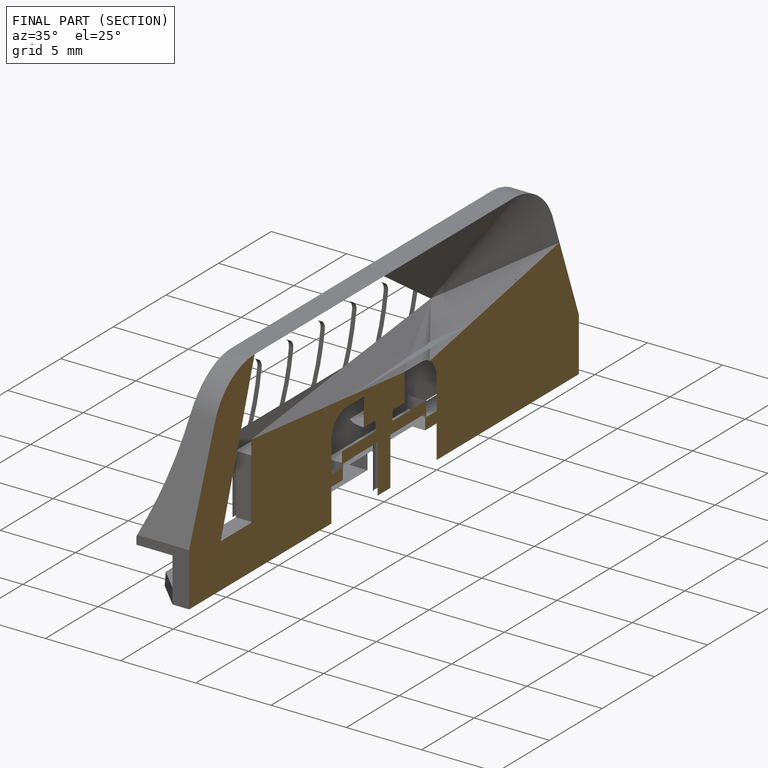
[diagram: finished part — half-section view (interior)]
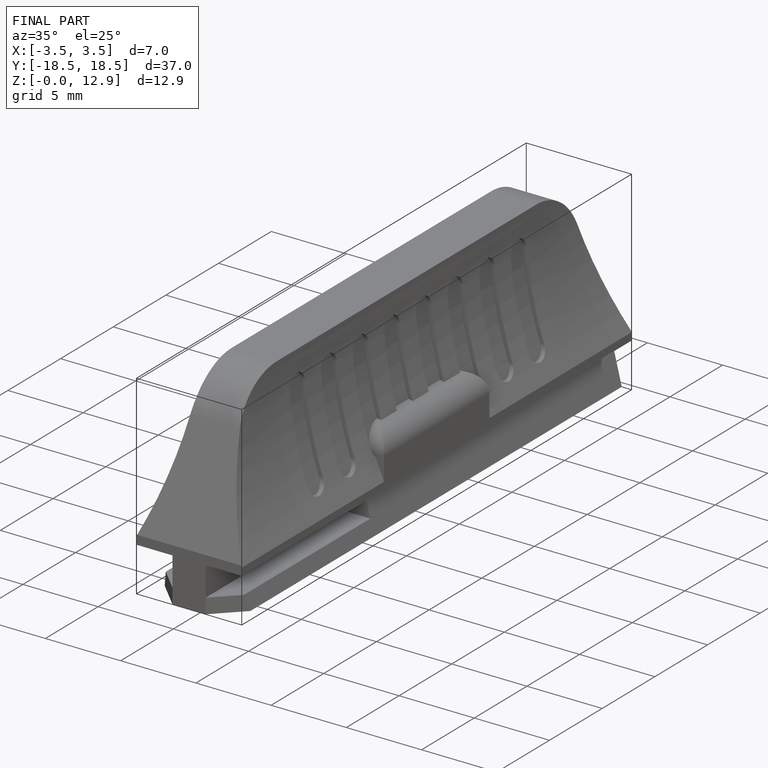
[diagram: finished part — iso view with bounding-box wireframe]
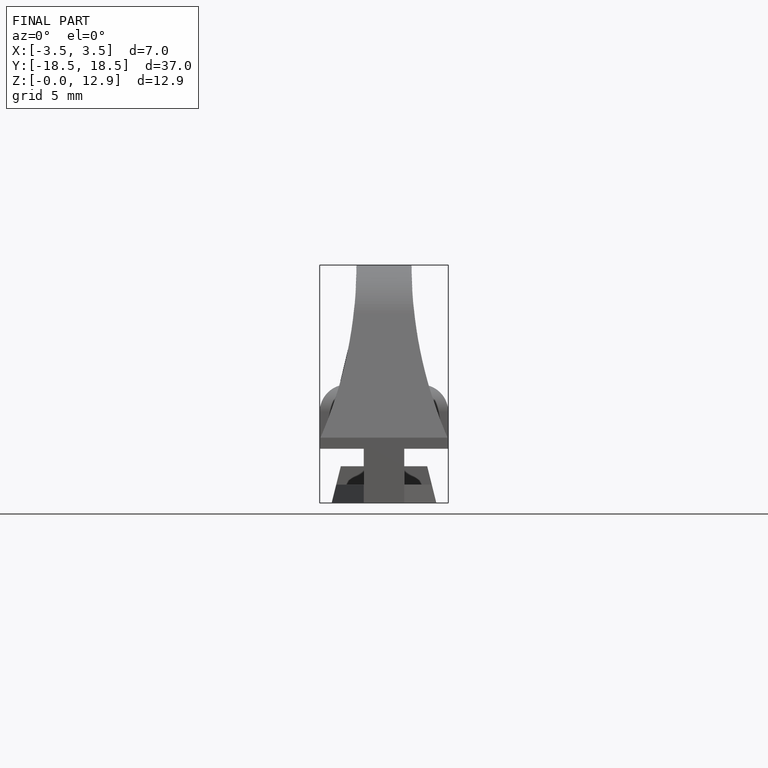
[diagram: finished part — front view with bounding-box wireframe]
